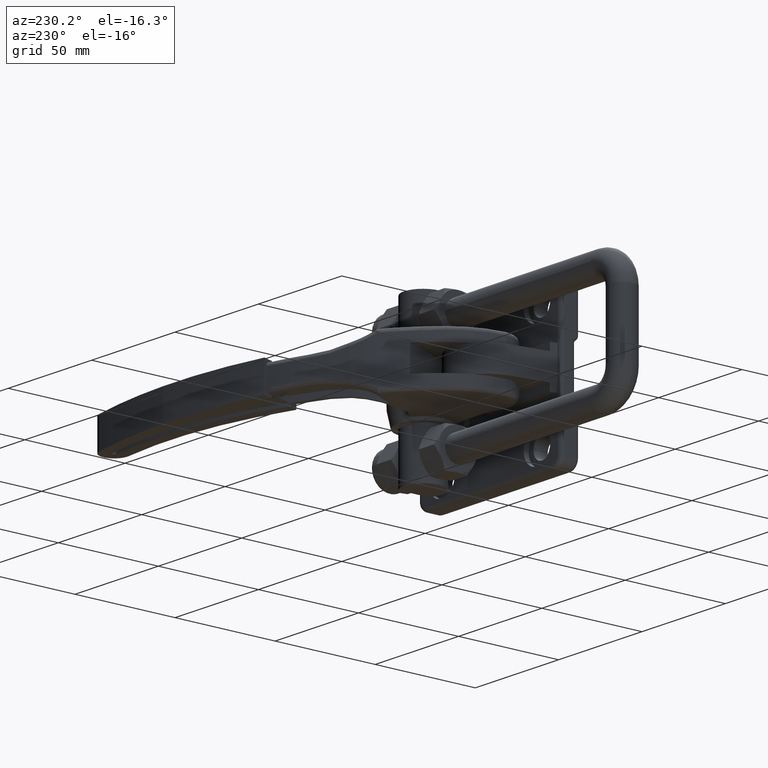
[diagram: clean part render]
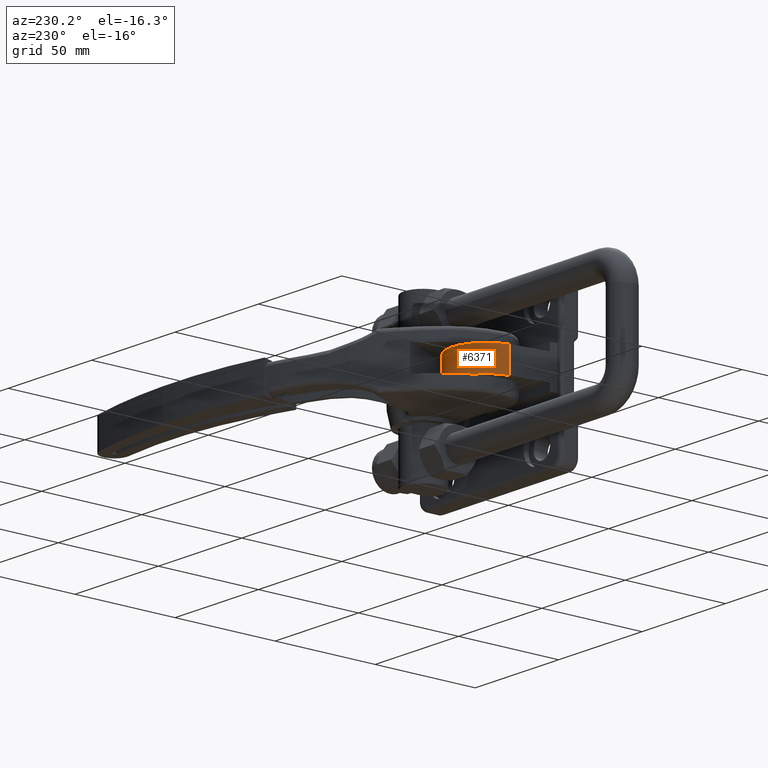
[diagram: same view with one face highlighted and labeled with its STEP entity id]
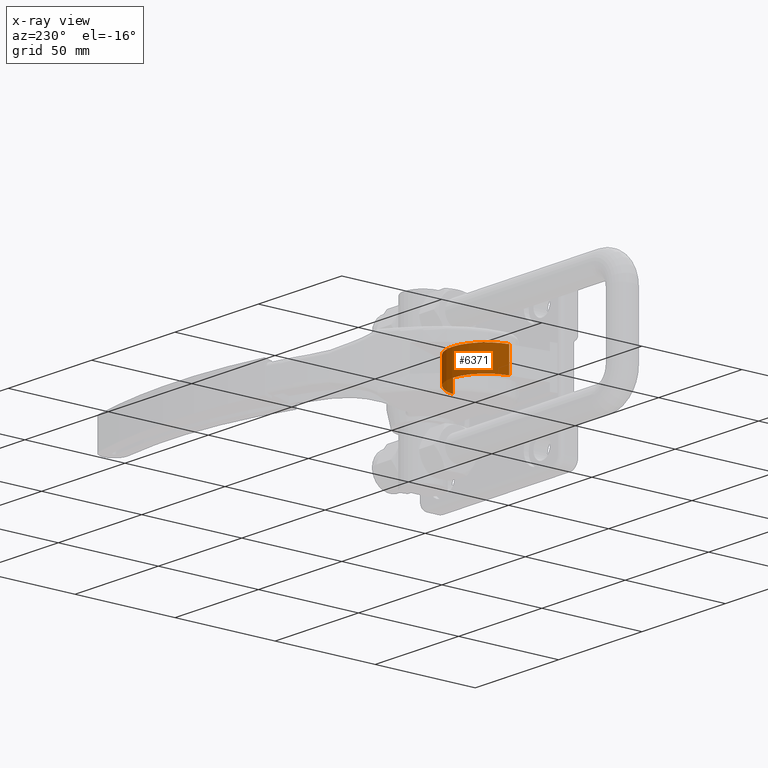
[diagram: x-ray of the same camera — body ghosted, the highlighted face saturated]
A machine part, auxiliary view. The second image highlights one B-rep face of the part: STEP entity #6371.
The next image is the same camera in x-ray: the body ghosted, the highlighted face saturated — about 0% of this face is hidden behind the body in this view.
In plain terms, the highlighted cylindrical surface (partial cylindrical patch) has radius 17 mm, axis along (-0, -0, -1).
Its self-contained STEP definition (entity closure, byte-faithful):
#56 = EDGE_CURVE ( 'NONE', #625, #10951, #11184, .T. ) ;
#68 = EDGE_LOOP ( 'NONE', ( #9808, #12711, #11350, #7177 ) ) ;
#401 = CARTESIAN_POINT ( 'NONE',  ( -37.71649960225405400, 31.09105221289900500, 6.250000000000000000 ) ) ;
#568 = LINE ( 'NONE', #6658, #5862 ) ;
#625 = VERTEX_POINT ( 'NONE', #1992 ) ;
#1044 = DIRECTION ( 'NONE',  ( 0.0000000000000000000, 0.0000000000000000000, 1.000000000000000000 ) ) ;
#1845 = DIRECTION ( 'NONE',  ( -4.622231866529366000E-033, -1.380506584136770700E-030, -1.000000000000000000 ) ) ;
#1980 = CARTESIAN_POINT ( 'NONE',  ( -4.083500397745937400, 31.09105221289901200, 10.00000000000000000 ) ) ;
#1992 = CARTESIAN_POINT ( 'NONE',  ( -4.083500397745937400, 31.09105221289901200, 6.250000000000000000 ) ) ;
#2455 = EDGE_CURVE ( 'NONE', #625, #7341, #2622, .T. ) ;
#2622 = CIRCLE ( 'NONE', #9775, 16.99999999999999600 ) ;
#3215 = VECTOR ( 'NONE', #9955, 1000.000000000000000 ) ;
#3467 = AXIS2_PLACEMENT_3D ( 'NONE', #11847, #1845, #5800 ) ;
#5278 = DIRECTION ( 'NONE',  ( 0.0000000000000000000, 0.0000000000000000000, 1.000000000000000000 ) ) ;
#5562 = CARTESIAN_POINT ( 'NONE',  ( -37.71649960225405400, 31.09105221289900500, -6.250000000000000000 ) ) ;
#5800 = DIRECTION ( 'NONE',  ( -1.000000000000000000, 0.0000000000000000000, 0.0000000000000000000 ) ) ;
#5862 = VECTOR ( 'NONE', #9599, 1000.000000000000000 ) ;
#6371 = ADVANCED_FACE ( 'NONE', ( #9214 ), #8894, .T. ) ;
#6658 = CARTESIAN_POINT ( 'NONE',  ( -37.71649960225405400, 31.09105221289900800, 10.00000000000000000 ) ) ;
#6984 = CARTESIAN_POINT ( 'NONE',  ( -20.89999999999999500, 28.60000000000000100, -6.250000000000000000 ) ) ;
#7177 = ORIENTED_EDGE ( 'NONE', *, *, #2455, .F. ) ;
#7341 = VERTEX_POINT ( 'NONE', #401 ) ;
#7499 = EDGE_CURVE ( 'NONE', #10951, #11852, #9030, .T. ) ;
#7991 = DIRECTION ( 'NONE',  ( 1.000000000000000000, 0.0000000000000000000, 0.0000000000000000000 ) ) ;
#8894 = CYLINDRICAL_SURFACE ( 'NONE', #3467, 16.99999999999999300 ) ;
#9030 = CIRCLE ( 'NONE', #9205, 16.99999999999999600 ) ;
#9205 = AXIS2_PLACEMENT_3D ( 'NONE', #6984, #1044, #7991 ) ;
#9214 = FACE_OUTER_BOUND ( 'NONE', #68, .T. ) ;
#9599 = DIRECTION ( 'NONE',  ( -4.622231866529366000E-033, -1.380506584136770700E-030, -1.000000000000000000 ) ) ;
#9775 = AXIS2_PLACEMENT_3D ( 'NONE', #11303, #5278, #12294 ) ;
#9808 = ORIENTED_EDGE ( 'NONE', *, *, #56, .T. ) ;
#9955 = DIRECTION ( 'NONE',  ( -4.622231866529366000E-033, -1.380506584136770700E-030, -1.000000000000000000 ) ) ;
#10951 = VERTEX_POINT ( 'NONE', #12849 ) ;
#11184 = LINE ( 'NONE', #1980, #3215 ) ;
#11303 = CARTESIAN_POINT ( 'NONE',  ( -20.89999999999999500, 28.60000000000000100, 6.250000000000000000 ) ) ;
#11350 = ORIENTED_EDGE ( 'NONE', *, *, #11905, .F. ) ;
#11847 = CARTESIAN_POINT ( 'NONE',  ( -20.89999999999999500, 28.60000000000000100, 10.00000000000000000 ) ) ;
#11852 = VERTEX_POINT ( 'NONE', #5562 ) ;
#11905 = EDGE_CURVE ( 'NONE', #7341, #11852, #568, .T. ) ;
#12294 = DIRECTION ( 'NONE',  ( 1.000000000000000000, 0.0000000000000000000, 0.0000000000000000000 ) ) ;
#12711 = ORIENTED_EDGE ( 'NONE', *, *, #7499, .T. ) ;
#12849 = CARTESIAN_POINT ( 'NONE',  ( -4.083500397745937400, 31.09105221289901200, -6.250000000000000000 ) ) ;